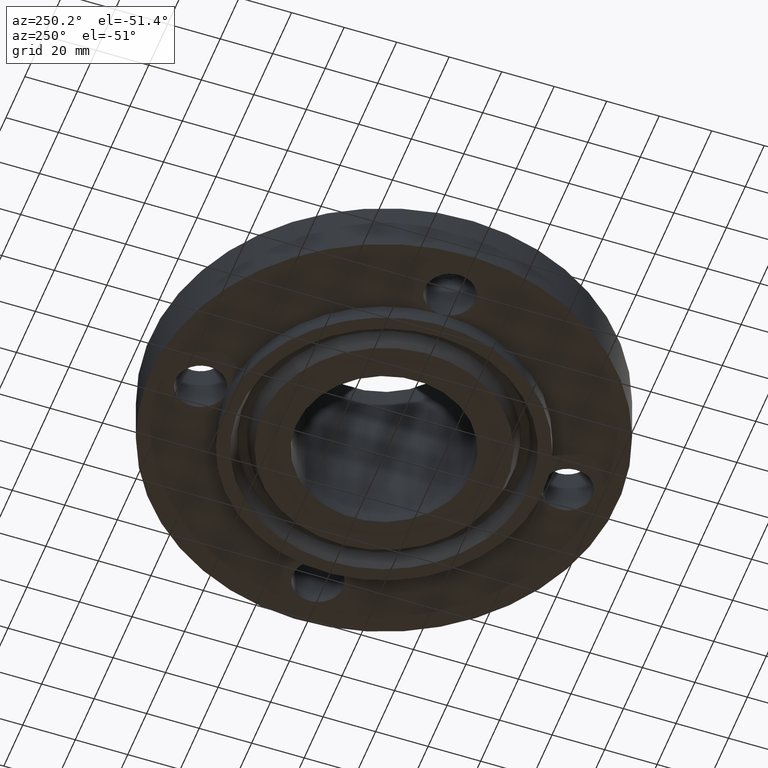
[diagram: clean part render]
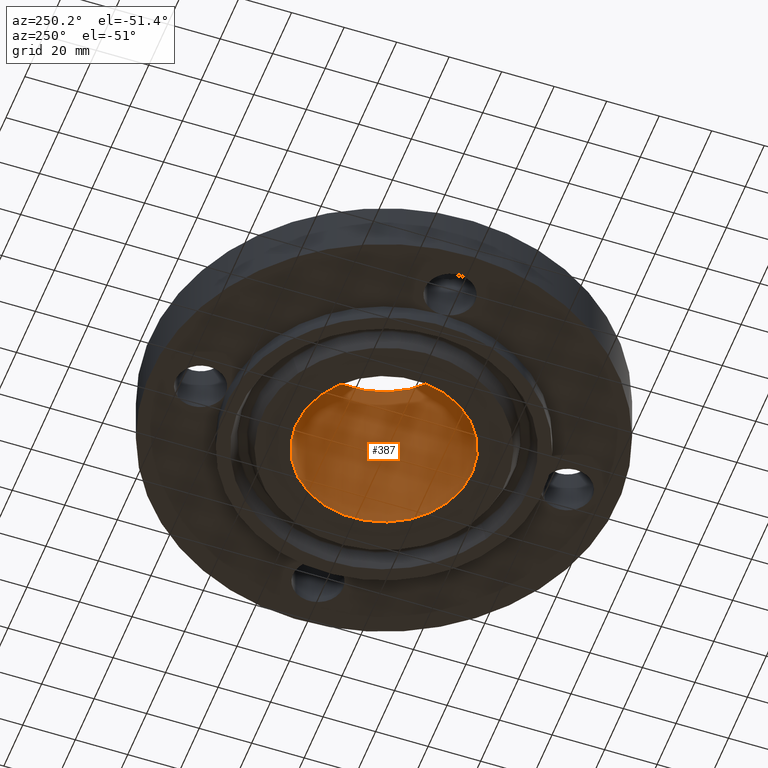
[diagram: same view with one face highlighted and labeled with its STEP entity id]
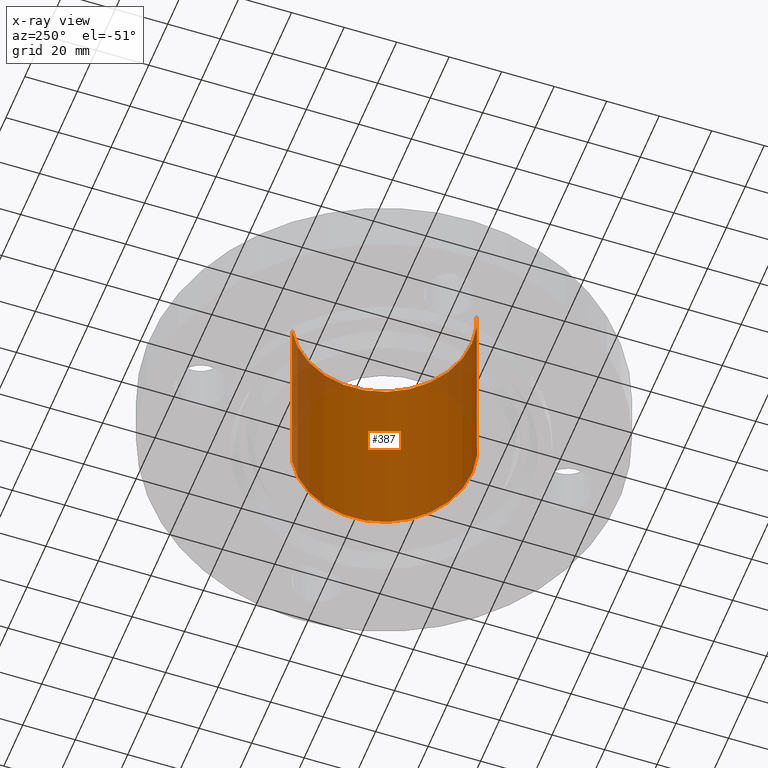
[diagram: x-ray of the same camera — body ghosted, the highlighted face saturated]
A machine part, auxiliary view. The second image highlights one B-rep face of the part: STEP entity #387.
The next image is the same camera in x-ray: the body ghosted, the highlighted face saturated — about 15% of this face is hidden behind the body in this view.
In plain terms, the highlighted cylindrical surface (partial cylindrical patch) has radius 33.4645 mm, axis along (0, 0, -1).
Its self-contained STEP definition (entity closure, byte-faithful):
#351=AXIS2_PLACEMENT_3D('Cylinder Axis2P3D',#348,#349,#350) ;
#355=AXIS2_PLACEMENT_3D('Circle Axis2P3D',#353,#354,$) ;
#371=AXIS2_PLACEMENT_3D('Circle Axis2P3D',#369,#370,$) ;
#348=CARTESIAN_POINT('Axis2P3D Location',(0.,0.,1.22)) ;
#353=CARTESIAN_POINT('Axis2P3D Location',(0.,0.,2.69000000001)) ;
#357=CARTESIAN_POINT('Vertex',(0.631643147114,1.1562150253,2.69000000001)) ;
#359=CARTESIAN_POINT('Vertex',(-0.631643147114,-1.1562150253,2.69000000001)) ;
#362=CARTESIAN_POINT('Line Origine',(0.631643147114,1.1562150253,1.22)) ;
#366=CARTESIAN_POINT('Vertex',(0.631643147114,1.1562150253,-0.250000000001)) ;
#369=CARTESIAN_POINT('Axis2P3D Location',(0.,0.,-0.250000000001)) ;
#373=CARTESIAN_POINT('Vertex',(-0.631643147114,-1.1562150253,-0.250000000001)) ;
#376=CARTESIAN_POINT('Line Origine',(-0.631643147114,-1.1562150253,1.22)) ;
#349=DIRECTION('Axis2P3D Direction',(0.,0.,-0.0393700787402)) ;
#350=DIRECTION('Axis2P3D XDirection',(-0.0188750212049,-0.0345504945626,0.)) ;
#354=DIRECTION('Axis2P3D Direction',(0.,0.,-0.0393700787402)) ;
#363=DIRECTION('Vector Direction',(0.,0.,-0.0393700787402)) ;
#370=DIRECTION('Axis2P3D Direction',(0.,0.,-0.0393700787402)) ;
#377=DIRECTION('Vector Direction',(0.,0.,-0.0393700787402)) ;
#364=VECTOR('Line Direction',#363,0.0393700787402) ;
#378=VECTOR('Line Direction',#377,0.0393700787402) ;
#382=ORIENTED_EDGE('',*,*,#361,.F.) ;
#383=ORIENTED_EDGE('',*,*,#368,.T.) ;
#384=ORIENTED_EDGE('',*,*,#375,.T.) ;
#385=ORIENTED_EDGE('',*,*,#380,.F.) ;
#387=ADVANCED_FACE('PartBody',(#386),#352,.F.) ;
#356=CIRCLE('generated circle',#355,1.31750000001) ;
#372=CIRCLE('generated circle',#371,1.31750000001) ;
#352=CYLINDRICAL_SURFACE('generated cylinder',#351,1.31750000001) ;
#361=EDGE_CURVE('',#358,#360,#356,.T.) ;
#368=EDGE_CURVE('',#358,#367,#365,.T.) ;
#375=EDGE_CURVE('',#367,#374,#372,.T.) ;
#380=EDGE_CURVE('',#360,#374,#379,.T.) ;
#381=EDGE_LOOP('',(#382,#383,#384,#385)) ;
#386=FACE_OUTER_BOUND('',#381,.T.) ;
#365=LINE('Line',#362,#364) ;
#379=LINE('Line',#376,#378) ;
#358=VERTEX_POINT('',#357) ;
#360=VERTEX_POINT('',#359) ;
#367=VERTEX_POINT('',#366) ;
#374=VERTEX_POINT('',#373) ;